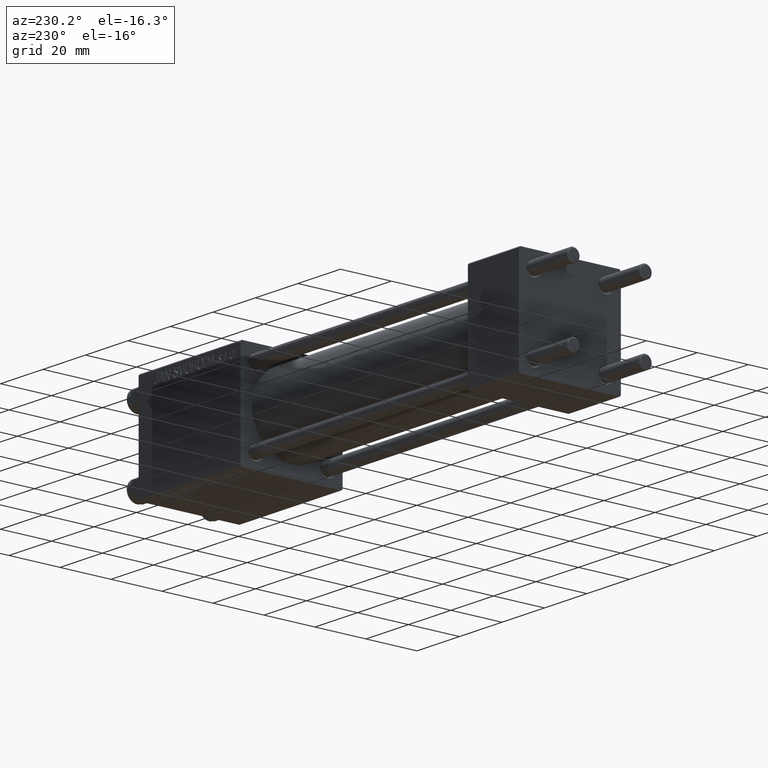
[diagram: clean part render]
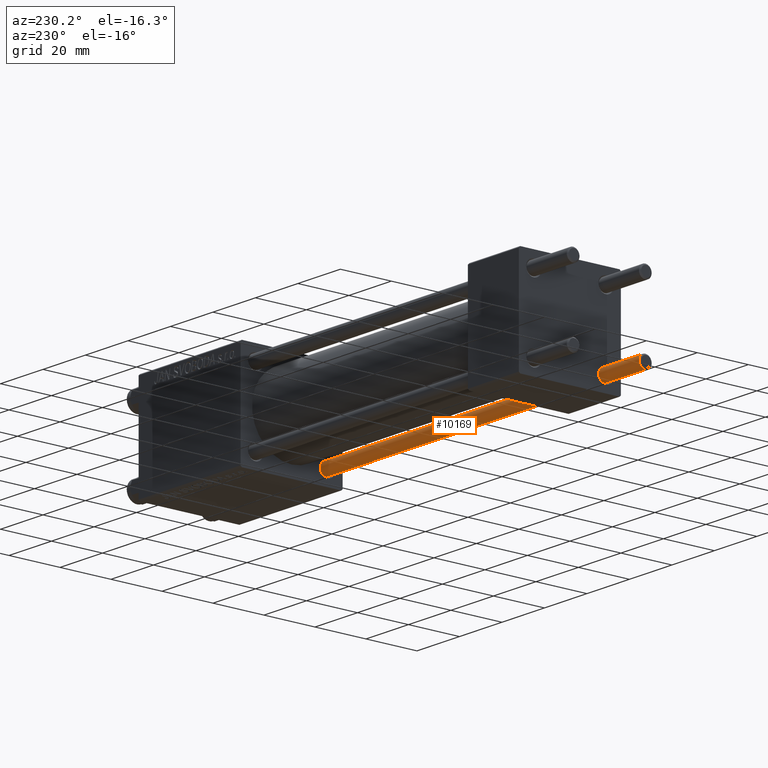
[diagram: same view with one face highlighted and labeled with its STEP entity id]
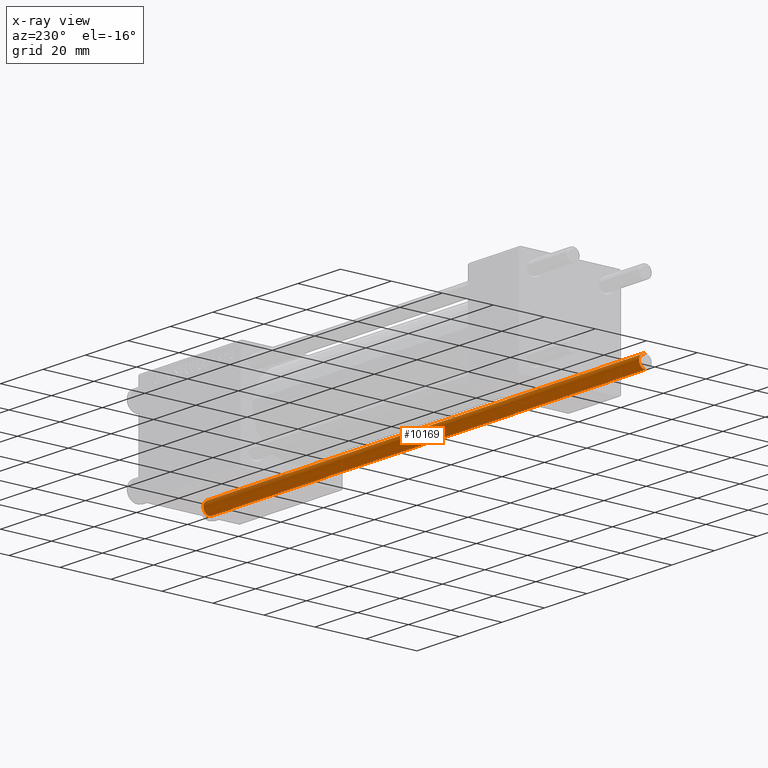
[diagram: x-ray of the same camera — body ghosted, the highlighted face saturated]
A machine part, auxiliary view. The second image highlights one B-rep face of the part: STEP entity #10169.
The next image is the same camera in x-ray: the body ghosted, the highlighted face saturated — about 7% of this face is hidden behind the body in this view.
In plain terms, the highlighted cylindrical surface (edge-blend (fillet) strip) has radius 2.5 mm, axis along (-1, 0, 0).
Its self-contained STEP definition (entity closure, byte-faithful):
#175 = DIRECTION ( 'NONE',  ( 1.000000000000000000, 0.000000000000000000, 0.000000000000000000 ) ) ;
#1512 = AXIS2_PLACEMENT_3D ( 'NONE', #40836, #41592, #10401 ) ;
#2929 = CARTESIAN_POINT ( 'NONE',  ( -2.500000000000000000, 0.000000000000000000, 206.0000000000000000 ) ) ;
#3077 = EDGE_CURVE ( 'NONE', #17046, #44523, #44101, .T. ) ;
#3112 = CYLINDRICAL_SURFACE ( 'NONE', #1512, 2.500000000000000000 ) ;
#6196 = CARTESIAN_POINT ( 'NONE',  ( 2.500000000000000000, 3.061616997868383141E-16, 205.5000000000000284 ) ) ;
#6337 = AXIS2_PLACEMENT_3D ( 'NONE', #49036, #41949, #175 ) ;
#8070 = DIRECTION ( 'NONE',  ( 1.000000000000000000, 0.000000000000000000, 0.000000000000000000 ) ) ;
#9173 = AXIS2_PLACEMENT_3D ( 'NONE', #47097, #38764, #8070 ) ;
#9948 = CARTESIAN_POINT ( 'NONE',  ( -2.500000000000000000, 0.000000000000000000, 205.5000000000000284 ) ) ;
#10169 = ADVANCED_FACE ( 'NONE', ( #49186 ), #3112, .T. ) ;
#10401 = DIRECTION ( 'NONE',  ( -1.000000000000000000, 0.000000000000000000, 0.000000000000000000 ) ) ;
#10776 = CIRCLE ( 'NONE', #9173, 2.500000000000000000 ) ;
#14486 = LINE ( 'NONE', #2929, #32947 ) ;
#15935 = ORIENTED_EDGE ( 'NONE', *, *, #26374, .T. ) ;
#17046 = VERTEX_POINT ( 'NONE', #6196 ) ;
#18698 = EDGE_CURVE ( 'NONE', #39841, #42331, #14486, .T. ) ;
#24971 = CARTESIAN_POINT ( 'NONE',  ( 2.500000000000000000, 3.061616997868383141E-16, 206.0000000000000000 ) ) ;
#25622 = CIRCLE ( 'NONE', #6337, 2.500000000000000000 ) ;
#26374 = EDGE_CURVE ( 'NONE', #42331, #44523, #25622, .T. ) ;
#28676 = ORIENTED_EDGE ( 'NONE', *, *, #18698, .T. ) ;
#30804 = ORIENTED_EDGE ( 'NONE', *, *, #47142, .T. ) ;
#31346 = CARTESIAN_POINT ( 'NONE',  ( -2.500000000000000000, 0.000000000000000000, 0.4999999999999726885 ) ) ;
#32947 = VECTOR ( 'NONE', #37385, 1000.000000000000000 ) ;
#37385 = DIRECTION ( 'NONE',  ( -0.000000000000000000, -0.000000000000000000, -1.000000000000000000 ) ) ;
#38764 = DIRECTION ( 'NONE',  ( 0.000000000000000000, 0.000000000000000000, -1.000000000000000000 ) ) ;
#38913 = CARTESIAN_POINT ( 'NONE',  ( 2.500000000000000000, 3.061616997868383141E-16, 0.4999999999999726885 ) ) ;
#39841 = VERTEX_POINT ( 'NONE', #9948 ) ;
#40315 = DIRECTION ( 'NONE',  ( -0.000000000000000000, -0.000000000000000000, -1.000000000000000000 ) ) ;
#40836 = CARTESIAN_POINT ( 'NONE',  ( 0.000000000000000000, 0.000000000000000000, 206.0000000000000000 ) ) ;
#41476 = VECTOR ( 'NONE', #40315, 1000.000000000000000 ) ;
#41592 = DIRECTION ( 'NONE',  ( -0.000000000000000000, -0.000000000000000000, -1.000000000000000000 ) ) ;
#41949 = DIRECTION ( 'NONE',  ( -0.000000000000000000, -0.000000000000000000, 1.000000000000000000 ) ) ;
#42331 = VERTEX_POINT ( 'NONE', #31346 ) ;
#44101 = LINE ( 'NONE', #24971, #41476 ) ;
#44523 = VERTEX_POINT ( 'NONE', #38913 ) ;
#47097 = CARTESIAN_POINT ( 'NONE',  ( 0.000000000000000000, 0.000000000000000000, 205.5000000000000284 ) ) ;
#47142 = EDGE_CURVE ( 'NONE', #17046, #39841, #10776, .T. ) ;
#47186 = ORIENTED_EDGE ( 'NONE', *, *, #3077, .F. ) ;
#49036 = CARTESIAN_POINT ( 'NONE',  ( 0.000000000000000000, 0.000000000000000000, 0.4999999999999726885 ) ) ;
#49104 = EDGE_LOOP ( 'NONE', ( #47186, #30804, #28676, #15935 ) ) ;
#49186 = FACE_OUTER_BOUND ( 'NONE', #49104, .T. ) ;